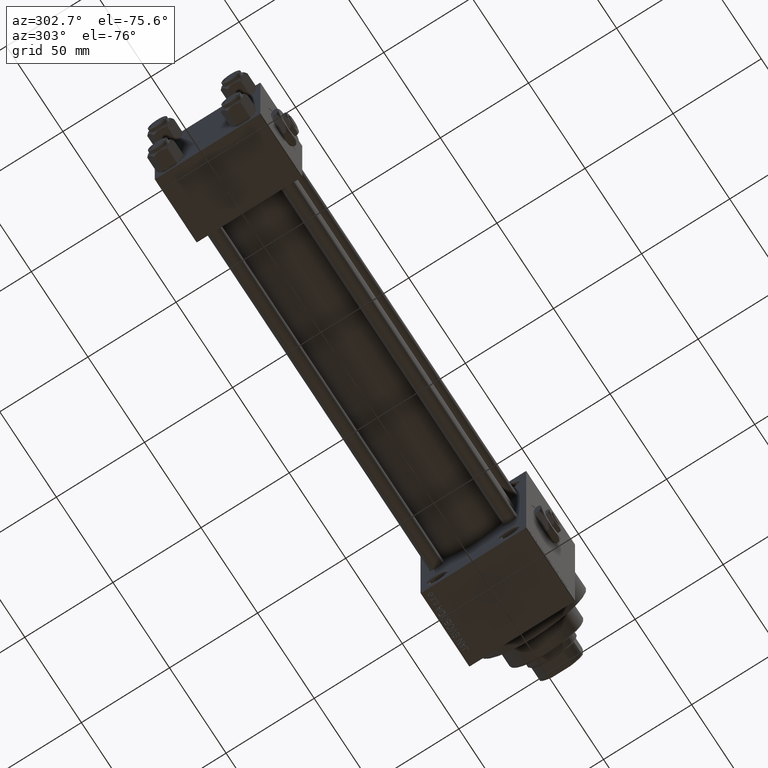
[diagram: clean part render]
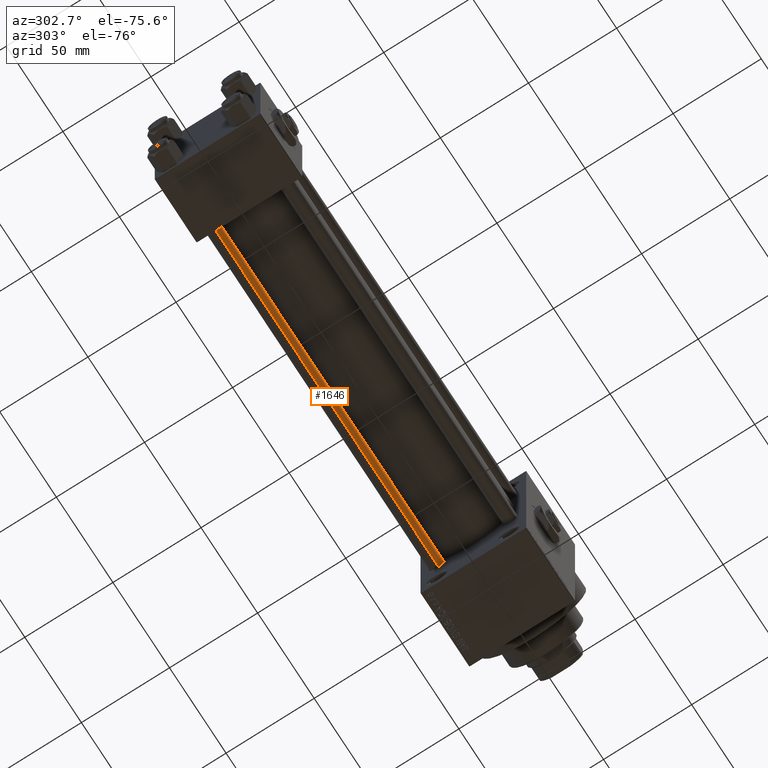
[diagram: same view with one face highlighted and labeled with its STEP entity id]
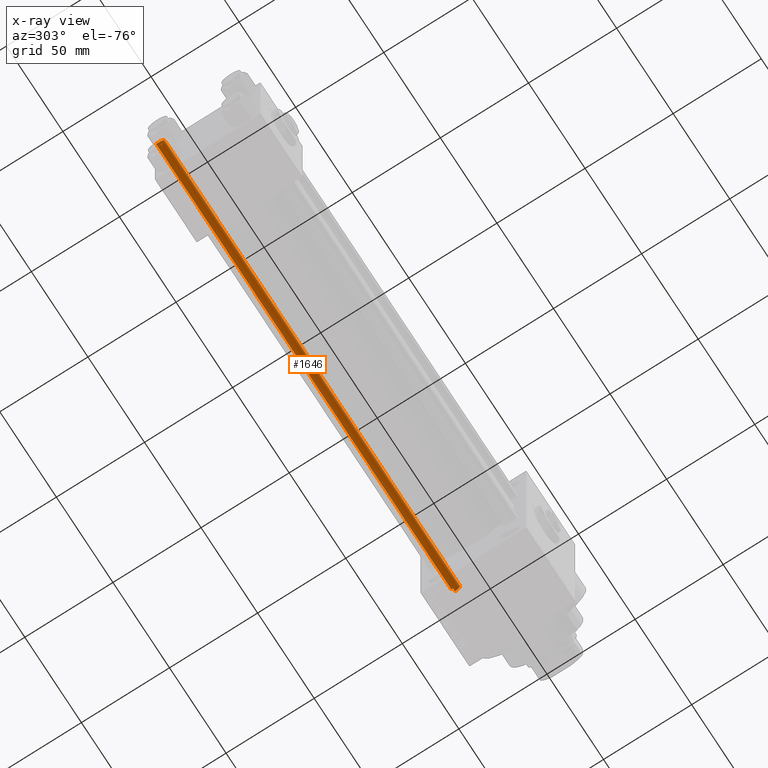
[diagram: x-ray of the same camera — body ghosted, the highlighted face saturated]
A machine part, auxiliary view. The second image highlights one B-rep face of the part: STEP entity #1646.
The next image is the same camera in x-ray: the body ghosted, the highlighted face saturated — about 1% of this face is hidden behind the body in this view.
In plain terms, the highlighted cylindrical surface (edge-blend (fillet) strip) has radius 4 mm, axis along (1, -0, 0).
Its self-contained STEP definition (entity closure, byte-faithful):
#1646 = ADVANCED_FACE ( 'NONE', ( #27211 ), #23483, .T. ) ;
#3980 = DIRECTION ( 'NONE',  ( 1.000000000000000000, 0.000000000000000000, 0.000000000000000000 ) ) ;
#4554 = CARTESIAN_POINT ( 'NONE',  ( 0.000000000000000000, 0.000000000000000000, 262.0000000000000000 ) ) ;
#4563 = CARTESIAN_POINT ( 'NONE',  ( 0.000000000000000000, 0.000000000000000000, 261.5000000000000000 ) ) ;
#8019 = CARTESIAN_POINT ( 'NONE',  ( -4.000000000000000000, 0.000000000000000000, 0.5000000000000559552 ) ) ;
#9105 = ORIENTED_EDGE ( 'NONE', *, *, #15343, .T. ) ;
#9249 = VECTOR ( 'NONE', #28004, 1000.000000000000000 ) ;
#10178 = AXIS2_PLACEMENT_3D ( 'NONE', #4563, #39409, #16032 ) ;
#10453 = ORIENTED_EDGE ( 'NONE', *, *, #10784, .F. ) ;
#10608 = LINE ( 'NONE', #25782, #40763 ) ;
#10784 = EDGE_CURVE ( 'NONE', #29782, #47775, #10608, .T. ) ;
#12831 = CARTESIAN_POINT ( 'NONE',  ( -4.000000000000000000, 0.000000000000000000, 262.0000000000000000 ) ) ;
#13266 = VERTEX_POINT ( 'NONE', #45563 ) ;
#13348 = AXIS2_PLACEMENT_3D ( 'NONE', #4554, #41935, #33967 ) ;
#15343 = EDGE_CURVE ( 'NONE', #25142, #47775, #27262, .T. ) ;
#16032 = DIRECTION ( 'NONE',  ( 1.000000000000000000, 0.000000000000000000, 0.000000000000000000 ) ) ;
#16334 = CARTESIAN_POINT ( 'NONE',  ( 4.000000000000000000, 4.898587196589412829E-16, 261.5000000000000000 ) ) ;
#22978 = CARTESIAN_POINT ( 'NONE',  ( 4.000000000000000000, 4.898587196589412829E-16, 0.5000000000000559552 ) ) ;
#23396 = CARTESIAN_POINT ( 'NONE',  ( 0.000000000000000000, 0.000000000000000000, 0.5000000000000559552 ) ) ;
#23483 = CYLINDRICAL_SURFACE ( 'NONE', #13348, 4.000000000000000000 ) ;
#23787 = LINE ( 'NONE', #12831, #9249 ) ;
#25142 = VERTEX_POINT ( 'NONE', #8019 ) ;
#25782 = CARTESIAN_POINT ( 'NONE',  ( 4.000000000000000000, 4.898587196589412829E-16, 262.0000000000000000 ) ) ;
#26681 = ORIENTED_EDGE ( 'NONE', *, *, #29976, .T. ) ;
#27211 = FACE_OUTER_BOUND ( 'NONE', #47728, .T. ) ;
#27262 = CIRCLE ( 'NONE', #43161, 4.000000000000000000 ) ;
#28004 = DIRECTION ( 'NONE',  ( -0.000000000000000000, -0.000000000000000000, -1.000000000000000000 ) ) ;
#29782 = VERTEX_POINT ( 'NONE', #16334 ) ;
#29976 = EDGE_CURVE ( 'NONE', #29782, #13266, #47530, .T. ) ;
#33967 = DIRECTION ( 'NONE',  ( -1.000000000000000000, 0.000000000000000000, 0.000000000000000000 ) ) ;
#35794 = EDGE_CURVE ( 'NONE', #13266, #25142, #23787, .T. ) ;
#38103 = DIRECTION ( 'NONE',  ( -0.000000000000000000, -0.000000000000000000, 1.000000000000000000 ) ) ;
#39409 = DIRECTION ( 'NONE',  ( 0.000000000000000000, 0.000000000000000000, -1.000000000000000000 ) ) ;
#40763 = VECTOR ( 'NONE', #41480, 1000.000000000000000 ) ;
#41480 = DIRECTION ( 'NONE',  ( -0.000000000000000000, -0.000000000000000000, -1.000000000000000000 ) ) ;
#41935 = DIRECTION ( 'NONE',  ( -0.000000000000000000, -0.000000000000000000, -1.000000000000000000 ) ) ;
#42875 = ORIENTED_EDGE ( 'NONE', *, *, #35794, .T. ) ;
#43161 = AXIS2_PLACEMENT_3D ( 'NONE', #23396, #38103, #3980 ) ;
#45563 = CARTESIAN_POINT ( 'NONE',  ( -4.000000000000000000, 0.000000000000000000, 261.5000000000000000 ) ) ;
#47530 = CIRCLE ( 'NONE', #10178, 4.000000000000000000 ) ;
#47728 = EDGE_LOOP ( 'NONE', ( #10453, #26681, #42875, #9105 ) ) ;
#47775 = VERTEX_POINT ( 'NONE', #22978 ) ;